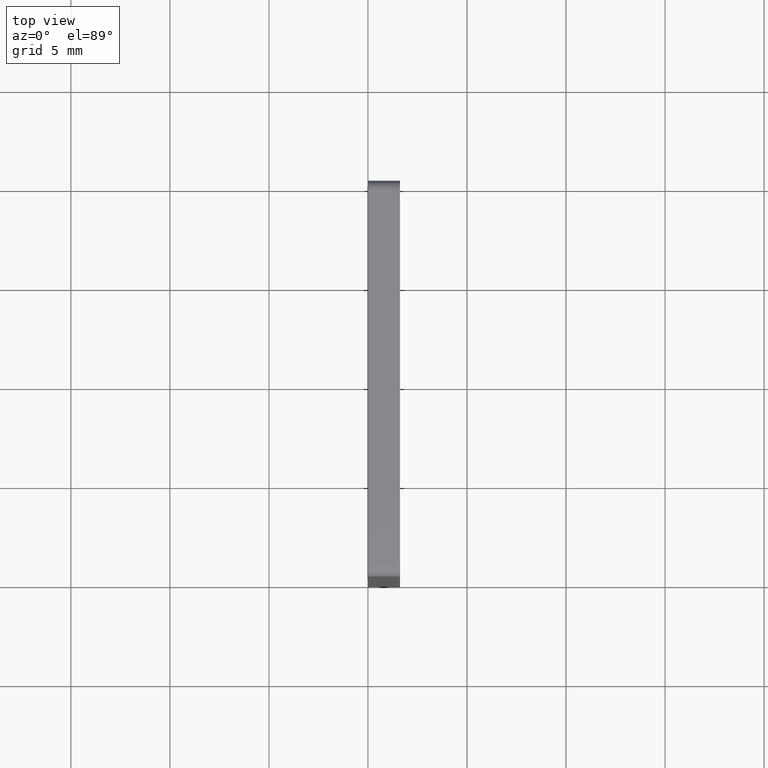
[diagram: clean part render]
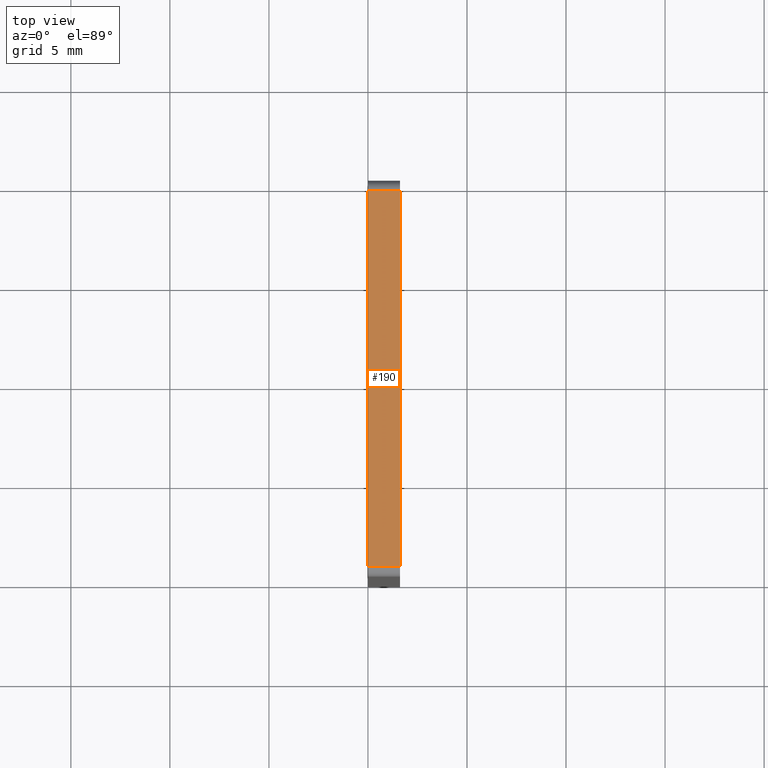
[diagram: same view with one face highlighted and labeled with its STEP entity id]
A machine part, top view. The second image highlights one B-rep face of the part: STEP entity #190.
In plain terms, the highlighted planar face has unit normal (0, 0, -1).
Its self-contained STEP definition (entity closure, byte-faithful):
#190 = ADVANCED_FACE ( 'NONE', ( #3726 ), #4309, .F. ) ;
#217 = CARTESIAN_POINT ( 'NONE',  ( 1.620000000000000995, 19.49999999999999645, 2.168404344971008868E-16 ) ) ;
#538 = ORIENTED_EDGE ( 'NONE', *, *, #13802, .T. ) ;
#604 = EDGE_CURVE ( 'NONE', #3287, #4369, #7859, .T. ) ;
#1602 = VERTEX_POINT ( 'NONE', #5547 ) ;
#2234 = CARTESIAN_POINT ( 'NONE',  ( 1.620000000000000995, 0.5000000000000035527, 0.000000000000000000 ) ) ;
#2418 = VECTOR ( 'NONE', #9674, 1000.000000000000000 ) ;
#2952 = VECTOR ( 'NONE', #3561, 1000.000000000000000 ) ;
#3287 = VERTEX_POINT ( 'NONE', #8825 ) ;
#3489 = CARTESIAN_POINT ( 'NONE',  ( 0.000000000000000000, 19.49999999999999645, 2.168404344971008868E-16 ) ) ;
#3561 = DIRECTION ( 'NONE',  ( -0.000000000000000000, -1.000000000000000000, -0.000000000000000000 ) ) ;
#3726 = FACE_OUTER_BOUND ( 'NONE', #11348, .T. ) ;
#3806 = DIRECTION ( 'NONE',  ( -1.000000000000000000, -0.000000000000000000, -0.000000000000000000 ) ) ;
#4211 = AXIS2_PLACEMENT_3D ( 'NONE', #12645, #5496, #7933 ) ;
#4309 = PLANE ( 'NONE',  #4211 ) ;
#4369 = VERTEX_POINT ( 'NONE', #3489 ) ;
#4493 = ORIENTED_EDGE ( 'NONE', *, *, #6397, .F. ) ;
#4649 = CARTESIAN_POINT ( 'NONE',  ( 1.620000000000000995, 0.5000000000000035527, 0.000000000000000000 ) ) ;
#4731 = DIRECTION ( 'NONE',  ( -0.000000000000000000, -1.000000000000000000, -0.000000000000000000 ) ) ;
#5496 = DIRECTION ( 'NONE',  ( 0.000000000000000000, 0.000000000000000000, -1.000000000000000000 ) ) ;
#5533 = VECTOR ( 'NONE', #4731, 1000.000000000000000 ) ;
#5547 = CARTESIAN_POINT ( 'NONE',  ( 0.000000000000000000, 0.5000000000000035527, 0.000000000000000000 ) ) ;
#6397 = EDGE_CURVE ( 'NONE', #7723, #1602, #6707, .T. ) ;
#6489 = LINE ( 'NONE', #4649, #2952 ) ;
#6707 = LINE ( 'NONE', #6967, #2418 ) ;
#6967 = CARTESIAN_POINT ( 'NONE',  ( 1.620000000000000995, 0.5000000000000035527, 0.000000000000000000 ) ) ;
#7707 = ORIENTED_EDGE ( 'NONE', *, *, #604, .T. ) ;
#7723 = VERTEX_POINT ( 'NONE', #2234 ) ;
#7859 = LINE ( 'NONE', #217, #13982 ) ;
#7933 = DIRECTION ( 'NONE',  ( -1.000000000000000000, 0.000000000000000000, -0.000000000000000000 ) ) ;
#8825 = CARTESIAN_POINT ( 'NONE',  ( 1.620000000000000995, 19.49999999999999645, 2.168404344971008868E-16 ) ) ;
#9674 = DIRECTION ( 'NONE',  ( -1.000000000000000000, -0.000000000000000000, -0.000000000000000000 ) ) ;
#10903 = CARTESIAN_POINT ( 'NONE',  ( 0.000000000000000000, 0.5000000000000035527, 0.000000000000000000 ) ) ;
#11348 = EDGE_LOOP ( 'NONE', ( #538, #4493, #15167, #7707 ) ) ;
#12645 = CARTESIAN_POINT ( 'NONE',  ( 1.620000000000000995, 0.5000000000000035527, 0.000000000000000000 ) ) ;
#13339 = EDGE_CURVE ( 'NONE', #3287, #7723, #6489, .T. ) ;
#13802 = EDGE_CURVE ( 'NONE', #4369, #1602, #14118, .T. ) ;
#13982 = VECTOR ( 'NONE', #3806, 1000.000000000000000 ) ;
#14118 = LINE ( 'NONE', #10903, #5533 ) ;
#15167 = ORIENTED_EDGE ( 'NONE', *, *, #13339, .F. ) ;